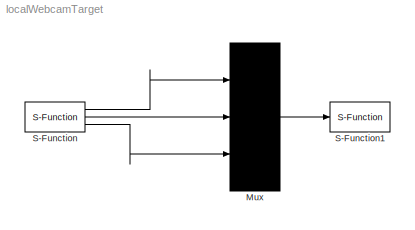
MODEL localWebcamTarget
KIND model
BLOCK [Mux] Mux
  DisplayOption = bar
  Inputs = 3
  Ports = [3, 1]
  SID = 25
BLOCK [S-Function] S-Function
  EnableBusSupport = off
  FunctionName = localPicOut
  Parameters = 320 240 320 240
  Ports = [0, 3]
  SID = 3
BLOCK [S-Function] S-Function1
  EnableBusSupport = off
  FunctionName = toIp
  Parameters = '153.104.47.61','6666'
  Ports = [1]
  SID = 24
LINE Mux:1 -> S-Function1:1
LINE S-Function:1 -> Mux:1
LINE S-Function:2 -> Mux:2
LINE S-Function:3 -> Mux:3
